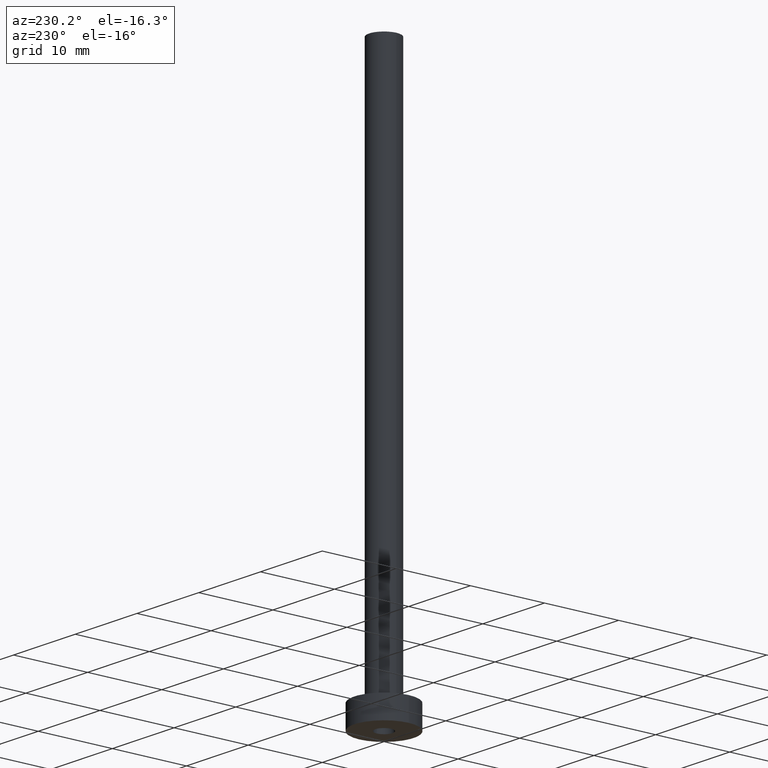
[diagram: clean part render]
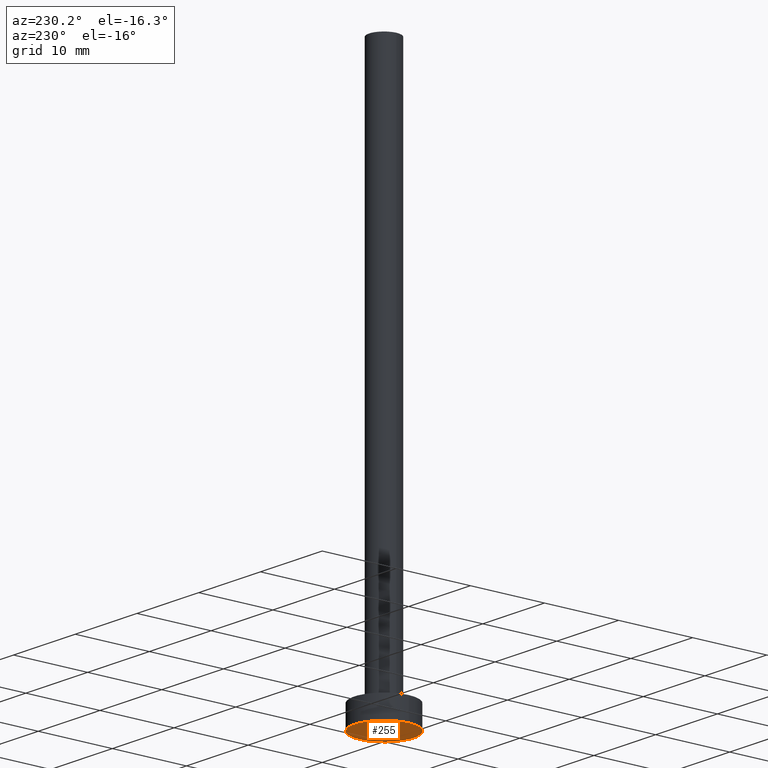
[diagram: same view with one face highlighted and labeled with its STEP entity id]
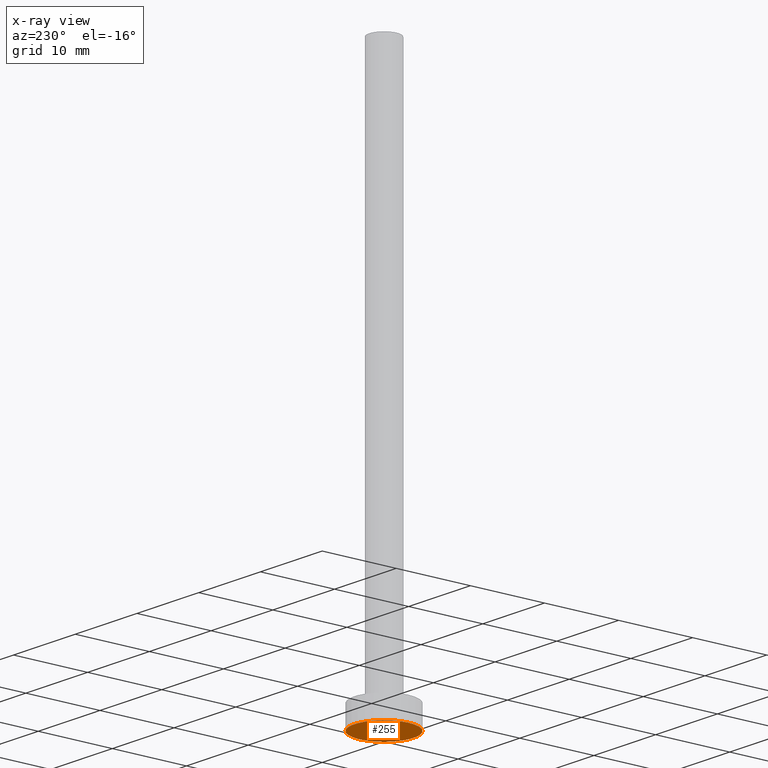
[diagram: x-ray of the same camera — body ghosted, the highlighted face saturated]
A machine part, auxiliary view. The second image highlights one B-rep face of the part: STEP entity #255.
The next image is the same camera in x-ray: the body ghosted, the highlighted face saturated — about 0% of this face is hidden behind the body in this view.
In plain terms, the highlighted planar face has unit normal (0, 0, 1).
Its self-contained STEP definition (entity closure, byte-faithful):
#10 = FACE_BOUND ( 'NONE', #97, .T. ) ;
#11 = CIRCLE ( 'NONE', #63, 4.000000000000000000 ) ;
#24 = VERTEX_POINT ( 'NONE', #308 ) ;
#27 = CIRCLE ( 'NONE', #299, 4.000000000000000000 ) ;
#39 = CARTESIAN_POINT ( 'NONE',  ( 1.149999999999999911, 1.408343819019456028E-16, 0.000000000000000000 ) ) ;
#47 = CIRCLE ( 'NONE', #265, 1.149999999999999911 ) ;
#63 = AXIS2_PLACEMENT_3D ( 'NONE', #358, #459, #132 ) ;
#75 = DIRECTION ( 'NONE',  ( 1.000000000000000000, 0.000000000000000000, -0.000000000000000000 ) ) ;
#92 = CARTESIAN_POINT ( 'NONE',  ( 4.000000000000000000, 4.898587196589412829E-16, 0.000000000000000000 ) ) ;
#97 = EDGE_LOOP ( 'NONE', ( #169, #277 ) ) ;
#99 = AXIS2_PLACEMENT_3D ( 'NONE', #111, #404, #75 ) ;
#100 = DIRECTION ( 'NONE',  ( 1.000000000000000000, 0.000000000000000000, 0.000000000000000000 ) ) ;
#101 = VERTEX_POINT ( 'NONE', #39 ) ;
#111 = CARTESIAN_POINT ( 'NONE',  ( 0.000000000000000000, 0.000000000000000000, 0.000000000000000000 ) ) ;
#124 = EDGE_CURVE ( 'NONE', #456, #101, #47, .T. ) ;
#132 = DIRECTION ( 'NONE',  ( 1.000000000000000000, 0.000000000000000000, 0.000000000000000000 ) ) ;
#134 = CARTESIAN_POINT ( 'NONE',  ( 0.000000000000000000, 0.000000000000000000, 0.000000000000000000 ) ) ;
#167 = DIRECTION ( 'NONE',  ( -0.000000000000000000, -0.000000000000000000, -1.000000000000000000 ) ) ;
#169 = ORIENTED_EDGE ( 'NONE', *, *, #124, .F. ) ;
#184 = EDGE_CURVE ( 'NONE', #209, #24, #27, .T. ) ;
#197 = AXIS2_PLACEMENT_3D ( 'NONE', #421, #167, #461 ) ;
#209 = VERTEX_POINT ( 'NONE', #92 ) ;
#224 = DIRECTION ( 'NONE',  ( 0.000000000000000000, 0.000000000000000000, 1.000000000000000000 ) ) ;
#255 = ADVANCED_FACE ( 'NONE', ( #10, #301 ), #339, .F. ) ;
#265 = AXIS2_PLACEMENT_3D ( 'NONE', #134, #457, #100 ) ;
#271 = DIRECTION ( 'NONE',  ( 1.000000000000000000, 0.000000000000000000, 0.000000000000000000 ) ) ;
#277 = ORIENTED_EDGE ( 'NONE', *, *, #450, .F. ) ;
#299 = AXIS2_PLACEMENT_3D ( 'NONE', #351, #224, #271 ) ;
#301 = FACE_OUTER_BOUND ( 'NONE', #427, .T. ) ;
#304 = EDGE_CURVE ( 'NONE', #24, #209, #11, .T. ) ;
#308 = CARTESIAN_POINT ( 'NONE',  ( -4.000000000000000000, 0.000000000000000000, 0.000000000000000000 ) ) ;
#324 = CARTESIAN_POINT ( 'NONE',  ( -1.149999999999999911, 0.000000000000000000, 0.000000000000000000 ) ) ;
#339 = PLANE ( 'NONE',  #99 ) ;
#350 = ORIENTED_EDGE ( 'NONE', *, *, #304, .F. ) ;
#351 = CARTESIAN_POINT ( 'NONE',  ( 0.000000000000000000, 0.000000000000000000, 0.000000000000000000 ) ) ;
#358 = CARTESIAN_POINT ( 'NONE',  ( 0.000000000000000000, 0.000000000000000000, 0.000000000000000000 ) ) ;
#378 = ORIENTED_EDGE ( 'NONE', *, *, #184, .F. ) ;
#404 = DIRECTION ( 'NONE',  ( 0.000000000000000000, 0.000000000000000000, 1.000000000000000000 ) ) ;
#412 = CIRCLE ( 'NONE', #197, 1.149999999999999911 ) ;
#421 = CARTESIAN_POINT ( 'NONE',  ( 0.000000000000000000, 0.000000000000000000, 0.000000000000000000 ) ) ;
#427 = EDGE_LOOP ( 'NONE', ( #350, #378 ) ) ;
#450 = EDGE_CURVE ( 'NONE', #101, #456, #412, .T. ) ;
#456 = VERTEX_POINT ( 'NONE', #324 ) ;
#457 = DIRECTION ( 'NONE',  ( -0.000000000000000000, -0.000000000000000000, -1.000000000000000000 ) ) ;
#459 = DIRECTION ( 'NONE',  ( 0.000000000000000000, 0.000000000000000000, 1.000000000000000000 ) ) ;
#461 = DIRECTION ( 'NONE',  ( 1.000000000000000000, 0.000000000000000000, 0.000000000000000000 ) ) ;